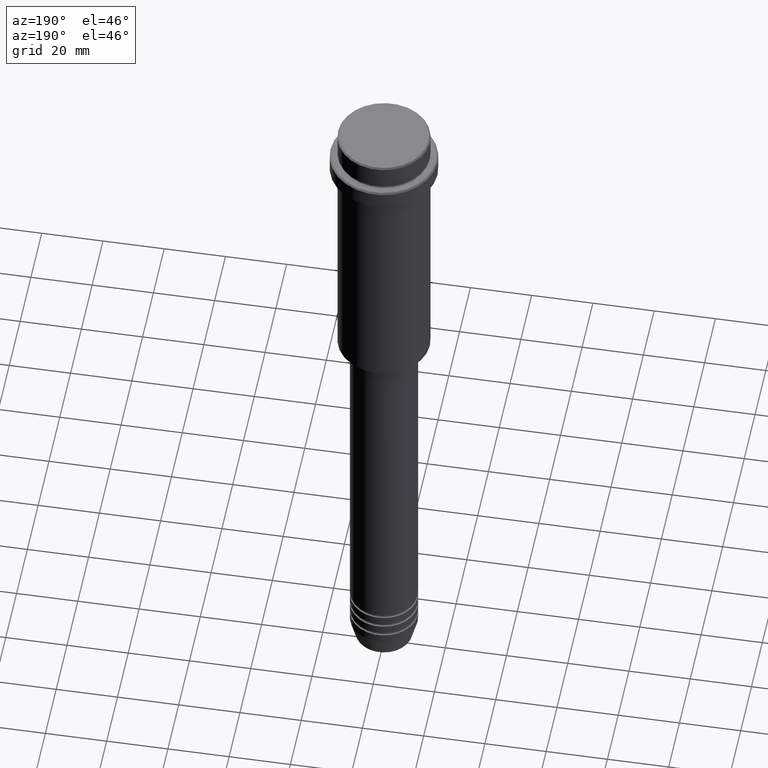
[diagram: clean part render]
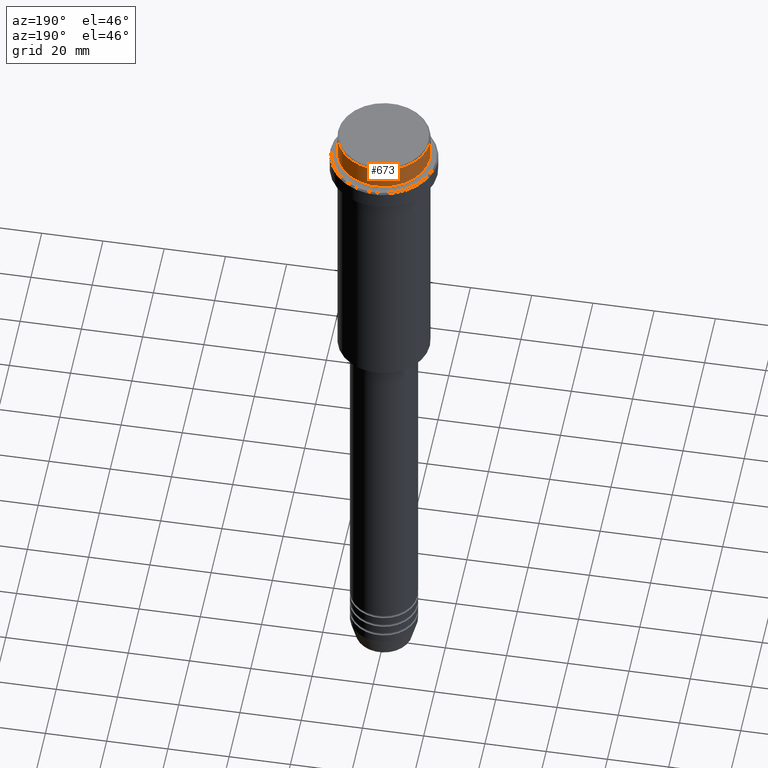
[diagram: same view with one face highlighted and labeled with its STEP entity id]
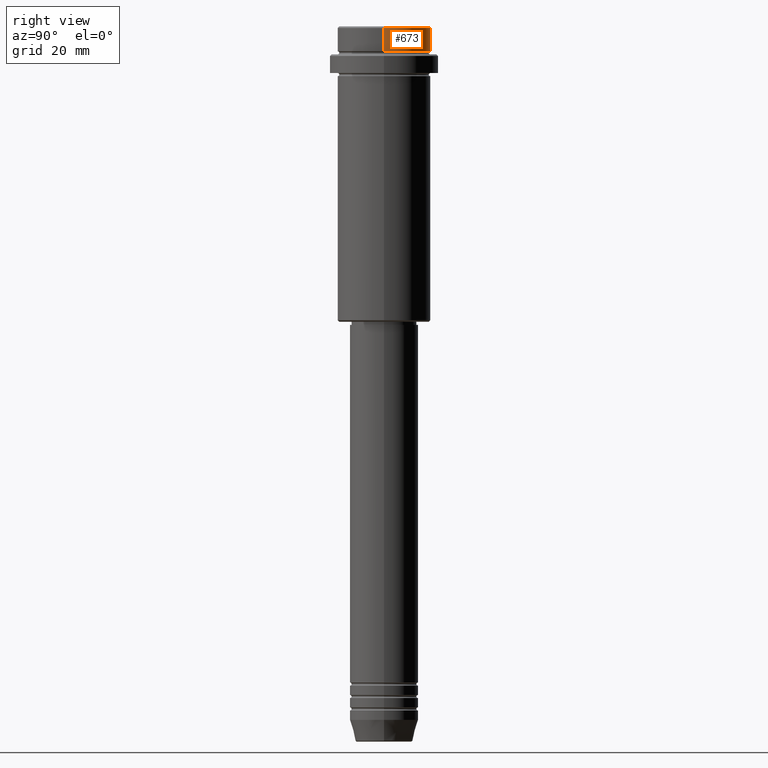
[diagram: same view with one face highlighted and labeled with its STEP entity id]
A machine part, auxiliary view. The second image highlights one B-rep face of the part: STEP entity #673.
A second angle (right view) of the same face is appended — the face is thin or edge-on in the first view.
In plain terms, the highlighted cylindrical surface (partial cylindrical patch) has radius 15 mm, axis along (-0, -0, 1).
Its self-contained STEP definition (entity closure, byte-faithful):
#2 = EDGE_CURVE ( 'NONE', #1228, #414, #153, .T. ) ;
#31 = DIRECTION ( 'NONE',  ( -0.000000000000000000, -0.000000000000000000, 1.000000000000000000 ) ) ;
#59 = CARTESIAN_POINT ( 'NONE',  ( 15.00000000000000000, 0.000000000000000000, -0.4999999999999831246 ) ) ;
#74 = CARTESIAN_POINT ( 'NONE',  ( -15.00000000000000000, 1.836970198721029589E-15, 0.000000000000000000 ) ) ;
#153 = CIRCLE ( 'NONE', #633, 15.00000000000000000 ) ;
#211 = CARTESIAN_POINT ( 'NONE',  ( 15.00000000000000000, 0.000000000000000000, -7.999999999999998224 ) ) ;
#299 = DIRECTION ( 'NONE',  ( 1.000000000000000000, 0.000000000000000000, 0.000000000000000000 ) ) ;
#306 = EDGE_CURVE ( 'NONE', #879, #414, #1255, .T. ) ;
#350 = EDGE_CURVE ( 'NONE', #879, #560, #918, .T. ) ;
#386 = DIRECTION ( 'NONE',  ( 0.000000000000000000, 0.000000000000000000, -1.000000000000000000 ) ) ;
#414 = VERTEX_POINT ( 'NONE', #59 ) ;
#422 = ORIENTED_EDGE ( 'NONE', *, *, #729, .T. ) ;
#560 = VERTEX_POINT ( 'NONE', #734 ) ;
#600 = CYLINDRICAL_SURFACE ( 'NONE', #1233, 15.00000000000000000 ) ;
#633 = AXIS2_PLACEMENT_3D ( 'NONE', #1365, #386, #743 ) ;
#638 = LINE ( 'NONE', #74, #874 ) ;
#667 = CARTESIAN_POINT ( 'NONE',  ( -15.00000000000000000, 1.836970198721029589E-15, -0.4999999999999831246 ) ) ;
#673 = ADVANCED_FACE ( 'NONE', ( #724 ), #600, .T. ) ;
#724 = FACE_OUTER_BOUND ( 'NONE', #1072, .T. ) ;
#729 = EDGE_CURVE ( 'NONE', #560, #1228, #638, .T. ) ;
#734 = CARTESIAN_POINT ( 'NONE',  ( -15.00000000000000000, 1.836970198721029589E-15, -7.999999999999998224 ) ) ;
#736 = AXIS2_PLACEMENT_3D ( 'NONE', #1190, #1313, #775 ) ;
#743 = DIRECTION ( 'NONE',  ( 1.000000000000000000, 0.000000000000000000, 0.000000000000000000 ) ) ;
#775 = DIRECTION ( 'NONE',  ( 1.000000000000000000, 0.000000000000000000, 0.000000000000000000 ) ) ;
#817 = ORIENTED_EDGE ( 'NONE', *, *, #350, .T. ) ;
#838 = DIRECTION ( 'NONE',  ( -0.000000000000000000, -0.000000000000000000, 1.000000000000000000 ) ) ;
#874 = VECTOR ( 'NONE', #1301, 1000.000000000000000 ) ;
#879 = VERTEX_POINT ( 'NONE', #211 ) ;
#918 = CIRCLE ( 'NONE', #736, 15.00000000000000000 ) ;
#1052 = ORIENTED_EDGE ( 'NONE', *, *, #306, .F. ) ;
#1072 = EDGE_LOOP ( 'NONE', ( #817, #422, #1338, #1052 ) ) ;
#1173 = CARTESIAN_POINT ( 'NONE',  ( 0.000000000000000000, 0.000000000000000000, 0.000000000000000000 ) ) ;
#1190 = CARTESIAN_POINT ( 'NONE',  ( 0.000000000000000000, 0.000000000000000000, -7.999999999999998224 ) ) ;
#1228 = VERTEX_POINT ( 'NONE', #667 ) ;
#1233 = AXIS2_PLACEMENT_3D ( 'NONE', #1173, #838, #299 ) ;
#1255 = LINE ( 'NONE', #1341, #1403 ) ;
#1301 = DIRECTION ( 'NONE',  ( -0.000000000000000000, -0.000000000000000000, 1.000000000000000000 ) ) ;
#1313 = DIRECTION ( 'NONE',  ( -0.000000000000000000, -0.000000000000000000, 1.000000000000000000 ) ) ;
#1338 = ORIENTED_EDGE ( 'NONE', *, *, #2, .T. ) ;
#1341 = CARTESIAN_POINT ( 'NONE',  ( 15.00000000000000000, 0.000000000000000000, 0.000000000000000000 ) ) ;
#1365 = CARTESIAN_POINT ( 'NONE',  ( 0.000000000000000000, 0.000000000000000000, -0.4999999999999831246 ) ) ;
#1403 = VECTOR ( 'NONE', #31, 1000.000000000000000 ) ;